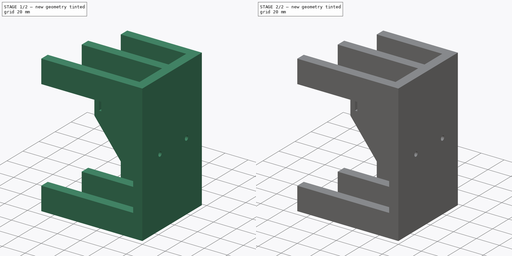
[diagram: build sequence overview — one tinted view per stage of 2, left to right]
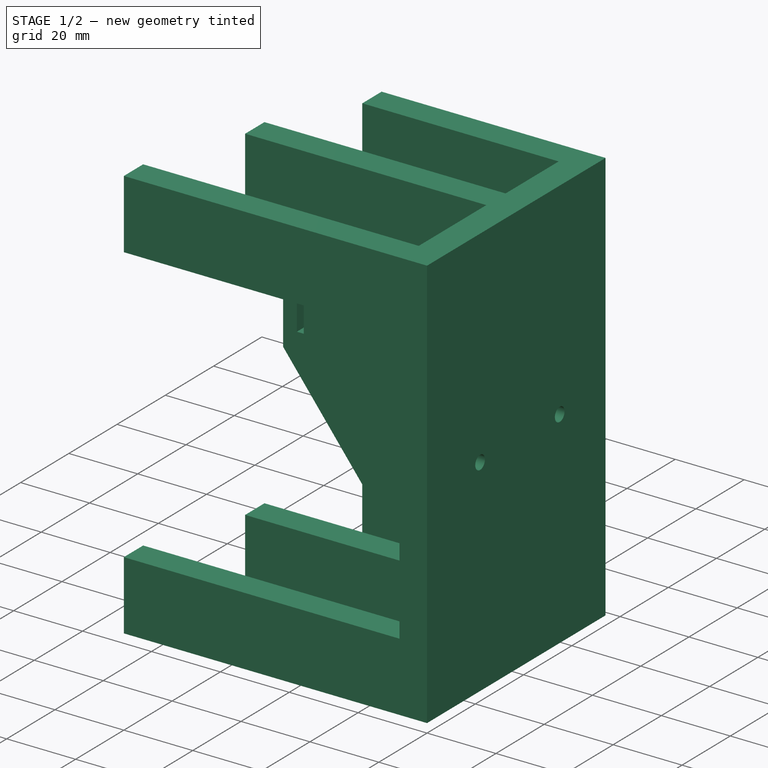
[diagram: stage 1 of 2 — iso view after this stage's code; geometry added in this stage tinted green]
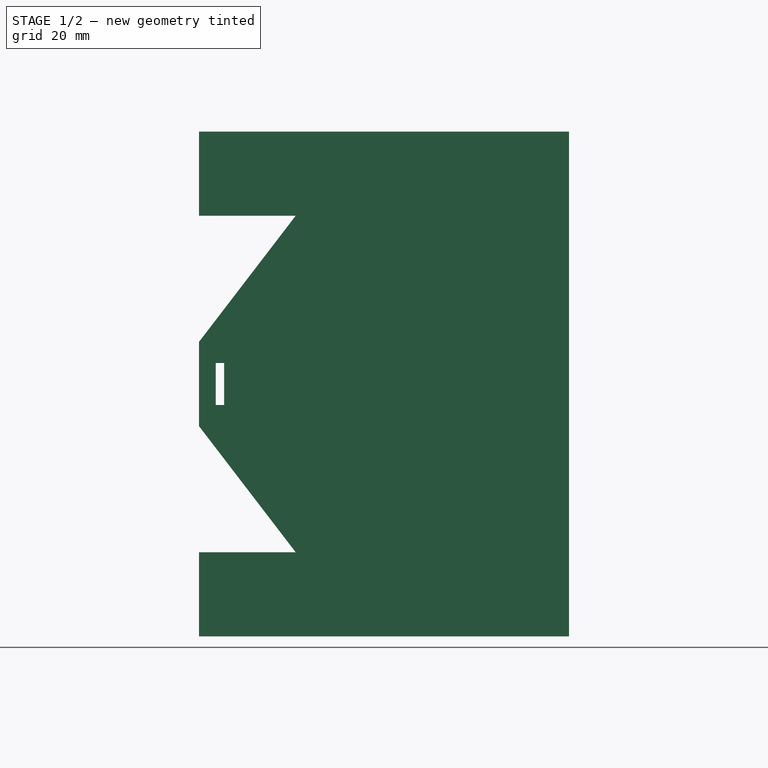
[diagram: stage 1 of 2 — front view after this stage's code; geometry added in this stage tinted green]
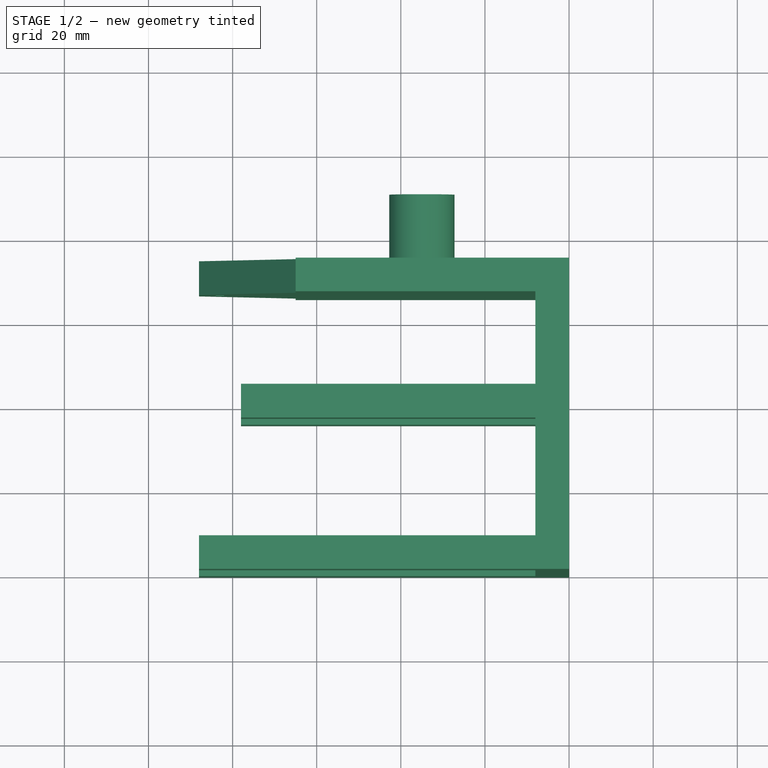
[diagram: stage 1 of 2 — top view after this stage's code; geometry added in this stage tinted green]
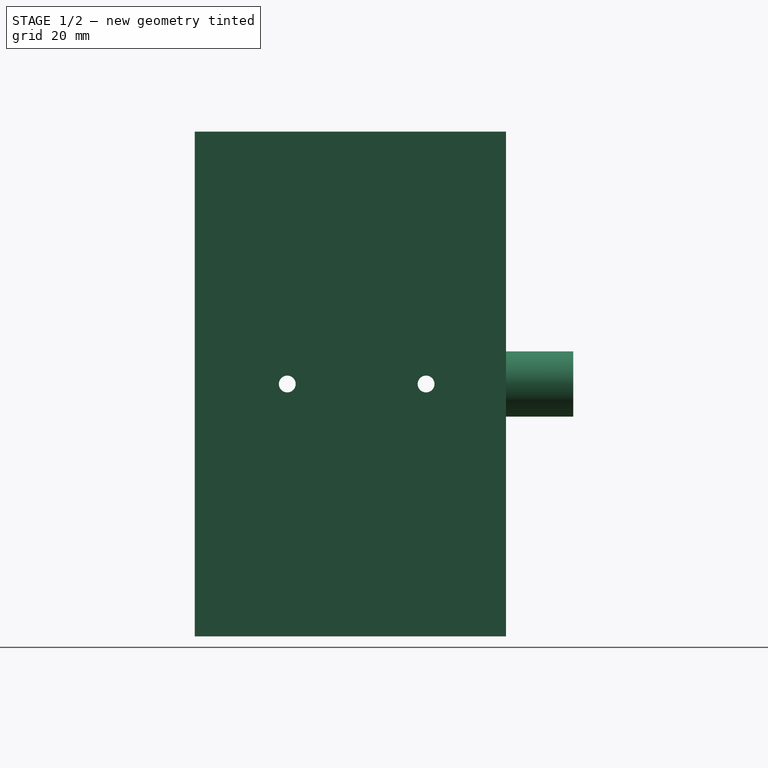
[diagram: stage 1 of 2 — right view after this stage's code; geometry added in this stage tinted green]
FCSTD DOCUMENT  (FreeCAD 0.18R4 (GitTag))
Label: soporte_dremel_accesoros
License: All rights reserved
LicenseURL: http://en.wikipedia.org/wiki/All_rights_reserved
objects: Sketcher::SketchObject×7, Part::Box×3, Part::Extrusion×3, PartDesign::Pad×2, PartDesign::Body×2, Part::MultiFuse×2, Part::Cut×2, PartDesign::Hole×2, Part::Chamfer×1
note: 28 computed .brp shape members not serialized (recipe doc carries the construction recipe); baked Part::Feature solids carry a one-line shape summary decoded from their .brp

FEATURE [Sketcher::SketchObject] Sketch
  MapMode = 5
  Support = -> [XY_Plane]
  sketch-geometry (12):
    g0: LineSegment StartX=-88 StartY=8 StartZ=0 EndX=-8 EndY=8 EndZ=0
    g1: LineSegment StartX=-88 StartY=8 StartZ=0 EndX=-88 EndY=0 EndZ=0
    g2: LineSegment StartX=-88 StartY=0 StartZ=0 EndX=0 EndY=0 EndZ=0
    g3: LineSegment StartX=0 StartY=0 StartZ=0 EndX=0 EndY=74 EndZ=0
    g4: LineSegment StartX=0 StartY=74 StartZ=0 EndX=-65 EndY=74 EndZ=0
    g5: LineSegment StartX=-65 StartY=74 StartZ=0 EndX=-65 EndY=66 EndZ=0
    g6: LineSegment StartX=-65 StartY=66 StartZ=0 EndX=-8 EndY=66 EndZ=0
    g7: LineSegment StartX=-8 StartY=66 StartZ=0 EndX=-8 EndY=44 EndZ=0
    g8: LineSegment StartX=-8 StartY=44 StartZ=0 EndX=-78 EndY=44 EndZ=0
    g9: LineSegment StartX=-78 StartY=44 StartZ=0 EndX=-78 EndY=36 EndZ=0
    g10: LineSegment StartX=-78 StartY=36 StartZ=0 EndX=-8 EndY=36 EndZ=0
    g11: LineSegment StartX=-8 StartY=36 StartZ=0 EndX=-8 EndY=8 EndZ=0
  constraints (35):
    c: Horizontal(g0)
    c: Coincident(g0,g1)
    c: Vertical(g1)
    c: Coincident(g1,g2)
    c: Horizontal(g2)
    c: Coincident(g2,g3)
    c: PointOnObject(g3,g-2)
    c: Coincident(g3,g4)
    c: Horizontal(g4)
    c: Coincident(g4,g5)
    c: Vertical(g5)
    c: Coincident(g5,g6)
    c: Horizontal(g6)
    c: Coincident(g6,g7)
    c: Vertical(g7)
    c: Coincident(g7,g8)
    c: Horizontal(g8)
    c: Coincident(g8,g9)
    c: Vertical(g9)
    c: Coincident(g9,g10)
    c: Horizontal(g10)
    c: Coincident(g10,g11)
    c: Coincident(g11,g0)
    c: Vertical(g11)
    c: DistanceX(g0,g0) = 80
    c: DistanceX(g10,g7) = 0
    c: DistanceY(g2,g0) = 8
    c: DistanceX(g10,g10) = 70
    c: DistanceX(g4,g4) = 65
    c: DistanceY(g10,g7) = 8
    c: DistanceY(g6,g3) = 8
    c: DistanceX(g0,g2) = 8
    c: DistanceY(g11,g11) = 28
    c: DistanceY(g7,g7) = 22
    c: Coincident(g2,g-1)
FEATURE [PartDesign::Pad] Pad
  Length = 20
  Length2 = 100
  Profile = -> Sketch
  Type = 0
FEATURE [Sketcher::SketchObject] Sketch001
  MapMode = 5
  Support = -> [XY_Plane001]
  sketch-geometry (12):
    g0: LineSegment StartX=-88 StartY=8 StartZ=0 EndX=-8 EndY=8 EndZ=0
    g1: LineSegment StartX=-88 StartY=8 StartZ=0 EndX=-88 EndY=0 EndZ=0
    g2: LineSegment StartX=-88 StartY=0 StartZ=0 EndX=0 EndY=0 EndZ=0
    g3: LineSegment StartX=0 StartY=0 StartZ=0 EndX=0 EndY=74 EndZ=0
    g4: LineSegment StartX=0 StartY=74 StartZ=0 EndX=-65 EndY=74 EndZ=0
    g5: LineSegment StartX=-65 StartY=74 StartZ=0 EndX=-65 EndY=66 EndZ=0
    g6: LineSegment StartX=-65 StartY=66 StartZ=0 EndX=-8 EndY=66 EndZ=0
    g7: LineSegment StartX=-8 StartY=66 StartZ=0 EndX=-8 EndY=44 EndZ=0
    g8: LineSegment StartX=-8 StartY=44 StartZ=0 EndX=-78 EndY=44 EndZ=0
    g9: LineSegment StartX=-78 StartY=44 StartZ=0 EndX=-78 EndY=36 EndZ=0
    g10: LineSegment StartX=-78 StartY=36 StartZ=0 EndX=-8 EndY=36 EndZ=0
    g11: LineSegment StartX=-8 StartY=36 StartZ=0 EndX=-8 EndY=8 EndZ=0
  constraints (35):
    c: Horizontal(g0)
    c: Coincident(g0,g1)
    c: Vertical(g1)
    c: Coincident(g1,g2)
    c: Horizontal(g2)
    c: Coincident(g2,g3)
    c: PointOnObject(g3,g-2)
    c: Coincident(g3,g4)
    c: Horizontal(g4)
    c: Coincident(g4,g5)
    c: Vertical(g5)
    c: Coincident(g5,g6)
    c: Horizontal(g6)
    c: Coincident(g6,g7)
    c: Vertical(g7)
    c: Coincident(g7,g8)
    c: Horizontal(g8)
    c: Coincident(g8,g9)
    c: Vertical(g9)
    c: Coincident(g9,g10)
    c: Horizontal(g10)
    c: Coincident(g10,g11)
    c: Coincident(g11,g0)
    c: Vertical(g11)
    c: DistanceX(g0,g0) = 80
    c: DistanceX(g10,g7) = 0
    c: DistanceY(g2,g0) = 8
    c: DistanceX(g10,g10) = 70
    c: DistanceX(g4,g4) = 65
    c: DistanceY(g10,g7) = 8
    c: DistanceY(g6,g3) = 8
    c: DistanceX(g0,g2) = 8
    c: DistanceY(g11,g11) = 28
    c: DistanceY(g7,g7) = 22
    c: Coincident(g2,g-1)
FEATURE [PartDesign::Pad] Pad001
  Length = 20
  Length2 = 100
  Profile = -> Sketch001
  Type = 0
FEATURE [PartDesign::Body] Body001
  Group = -> [Sketch001,Pad001]
  Origin = -> Origin001
  Placement = pos=(0,0,100) rot=(0,0,1;0rad)
  Tip = -> Pad001
FEATURE [Part::Box] Box  label="Cube"
  AttacherType = Attacher::AttachEngine3D
  Height = 120
  Length = 8
  Placement = pos=(-8,0,0) rot=(0,0,1;0rad)
  Width = 74
FEATURE [Part::Box] Box001  label="Cube001"
  AttacherType = Attacher::AttachEngine3D
  Height = 120
  Length = 65
  Placement = pos=(-65,66,0) rot=(0,0,1;0rad)
  Width = 8
FEATURE [Part::Box] Box002  label="Cube002"
  AttacherType = Attacher::AttachEngine3D
  Height = 10
  Length = 2
  Placement = pos=(-84,64,55) rot=(0,0,1;0rad)
  Width = 10
FEATURE [Sketcher::SketchObject] CopySketch005
  Placement = pos=(-8,0,0) rot=(0.57735,-0.57735,-0.57735;2.0944rad)
  sketch-geometry (4):
    g0: LineSegment [constr] StartX=-55 StartY=20 StartZ=0 EndX=-55 EndY=60 EndZ=0
    g1: LineSegment [constr] StartX=-22 StartY=20 StartZ=0 EndX=-22 EndY=60 EndZ=0
    g2: Circle CenterX=-55 CenterY=60 CenterZ=0 NormalX=0 NormalY=0 NormalZ=1 AngleXU=0 Radius=2
    g3: Circle CenterX=-22 CenterY=60 CenterZ=0 NormalX=0 NormalY=0 NormalZ=1 AngleXU=0 Radius=2
  constraints (8):
    c: Vertical(g0)
    c: Vertical(g1)
    c: DistanceY(g1,g1) = 40
    c: DistanceY(g0,g0) = 40
    c: Coincident(g2,g0)
    c: Diameter(g3) = 4
    c: Equal(g3,g2)
    c: Coincident(g3,g1)
FEATURE [PartDesign::Body] Body
  Group = -> [Sketch,Pad,Hole,Hole001]
  Origin = -> Origin
  Tip = -> Hole001
FEATURE [Part::MultiFuse] Fusion
  Shapes = -> [Box001,Box,Body001,Body]
FEATURE [Sketcher::SketchObject] Sketch002
  ExternalGeometry = -> [Fusion]
  MapMode = 5
  Placement = pos=(0,74,0) rot=(0,0.707107,0.707107;3.14159rad)
  Support = -> [Fusion]
  sketch-geometry (2):
    g0: Circle [constr] CenterX=35 CenterY=60 CenterZ=0 NormalX=0 NormalY=0 NormalZ=1 AngleXU=0 Radius=30
    g1: Circle CenterX=35 CenterY=60 CenterZ=0 NormalX=0 NormalY=0 NormalZ=1 AngleXU=0 Radius=7.75
  constraints (5):
    c: Coincident(g1,g0)
    c: Diameter(g1) = 15.5
    c: Diameter(g0) = 60
    c: DistanceX(g1,g-3) = 30
    c: DistanceY(g1,g-3) = 60
FEATURE [Part::Extrusion] Extrude
  Base = -> Sketch002
  Dir = (0,1,-2e-16)
  DirMode = 2
  FaceMakerClass = Part::FaceMakerBullseye
  LengthFwd = 16
  LengthRev = 0
  Solid = true
  Symmetric = false
FEATURE [Sketcher::SketchObject] Sketch003
  ExternalGeometry = -> [Pad001,Sketch001,Fusion]
  MapMode = 5
  Placement = pos=(0,74,0) rot=(0,0.707107,0.707107;3.14159rad)
  Support = -> [Fusion]
  sketch-geometry (5):
    g0: LineSegment StartX=65 StartY=100 StartZ=0 EndX=65 EndY=20 EndZ=0
    g1: LineSegment StartX=65 StartY=20 StartZ=0 EndX=88 EndY=50 EndZ=0
    g2: LineSegment StartX=88 StartY=50 StartZ=0 EndX=88 EndY=70 EndZ=0
    g3: LineSegment StartX=88 StartY=70 StartZ=0 EndX=65 EndY=100 EndZ=0
    g4: LineSegment [constr] StartX=0 StartY=60 StartZ=0 EndX=120 EndY=60 EndZ=0
  constraints (14):
    c: Vertical(g0)
    c: Coincident(g0,g1)
    c: Coincident(g1,g2)
    c: Vertical(g2)
    c: Coincident(g2,g3)
    c: Coincident(g3,g0)
    c: DistanceY(g-1,g4) = 60
    c: Symmetric(g2,g1,g4)
    c: DistanceY(g2,g2) = 20
    c: DistanceX(g0,g2) = 23
    c: DistanceY(g0,g0) = 80
    c: Coincident(g0,g-6)
    c: DistanceX(g4,g4) = 120
    c: PointOnObject(g4,g-2)
FEATURE [Part::Extrusion] Extrude001
  Base = -> Sketch003
  Dir = (0,1,-2e-16)
  DirMode = 2
  FaceMakerClass = Part::FaceMakerBullseye
  LengthFwd = 0
  LengthRev = 8
  Solid = true
  Symmetric = false
FEATURE [Part::Cut] Cut
  Base = -> Extrude001
  Tool = -> Box002
FEATURE [Sketcher::SketchObject] Sketch004
  ExternalGeometry = -> [Sketch,Pad,Sketch001,Pad001,Fusion001]
  MapMode = 5
  Placement = pos=(-8,0,0) rot=(0.57735,-0.57735,-0.57735;2.0944rad)
  Support = -> [Fusion]
  sketch-geometry (9):
    g0: LineSegment [constr] StartX=-66 StartY=20 StartZ=0 EndX=-55 EndY=10 EndZ=0
    g1: LineSegment [constr] StartX=-44 StartY=20 StartZ=0 EndX=-55 EndY=10 EndZ=0
    g2: LineSegment [constr] StartX=-36 StartY=20 StartZ=0 EndX=-22 EndY=10 EndZ=0
    g3: LineSegment [constr] StartX=-8 StartY=20 StartZ=0 EndX=-22 EndY=10 EndZ=0
    g4: LineSegment [constr] StartX=-55 StartY=10 StartZ=0 EndX=-55 EndY=60 EndZ=0
    g5: LineSegment [constr] StartX=-22 StartY=10 StartZ=0 EndX=-22 EndY=60 EndZ=0
    g6: LineSegment [constr] StartX=-100 StartY=60 StartZ=0 EndX=0 EndY=60 EndZ=0
    g7: Circle CenterX=-55 CenterY=60 CenterZ=0 NormalX=0 NormalY=0 NormalZ=1 AngleXU=0 Radius=2
    g8: Circle CenterX=-22 CenterY=60 CenterZ=0 NormalX=0 NormalY=0 NormalZ=1 AngleXU=0 Radius=2
  constraints (24):
    c: Coincident(g1,g-8)
    c: Coincident(g0,g-8)
    c: Coincident(g-5,g2)
    c: Coincident(g3,g-5)
    c: Coincident(g0,g1)
    c: Coincident(g2,g3)
    c: Vertical(g4)
    c: Coincident(g5,g2)
    c: Vertical(g5)
    c: Horizontal(g6)
    c: Coincident(g0,g4)
    c: DistanceY(g-6,g2) = 10
    c: DistanceY(g0,g2) = 0
    c: DistanceX(g0,g2) = 33
    c: DistanceX(g-7,g0) = 11
    c: PointOnObject(g6,g-2)
    c: DistanceY(g-1,g6) = 60
    c: DistanceX(g6,g6) = 100
    c: PointOnObject(g5,g6)
    c: PointOnObject(g4,g6)
    c: Coincident(g7,g4)
    c: Coincident(g8,g5)
    c: Diameter(g7) = 4
    c: Equal(g7,g8)
FEATURE [Part::MultiFuse] Fusion001
  Shapes = -> [Cut,Extrude,Fusion]
FEATURE [PartDesign::Hole] Hole
  BaseFeature = -> Pad
  Depth = 25
  DepthType = 1
  Diameter = 4.4
  DrillPoint = 1
  DrillPointAngle = 118
  HoleCutCountersinkAngle = 90
  HoleCutDepth = 2.4
  HoleCutDiameter = 8
  HoleCutType = 1
  ModelActualThread = false
  Profile = -> Sketch004
  Tapered = false
  TaperedAngle = 90
  ThreadAngle = 0
  ThreadClass = 0
  ThreadCutOffInner = 0
  ThreadCutOffOuter = 0
  ThreadDirection = 0
  ThreadFit = 0
  ThreadPitch = 0
  ThreadSize = 5
  ThreadType = 1
  Threaded = false
FEATURE [Sketcher::SketchObject] Sketch005
  ExternalGeometry = -> [Hole]
  MapMode = 5
  Placement = pos=(-8,0,0) rot=(0.57735,-0.57735,-0.57735;2.0944rad)
  Support = -> [Fusion001]
  sketch-geometry (4):
    g0: LineSegment [constr] StartX=-55 StartY=20 StartZ=0 EndX=-55 EndY=60 EndZ=0
    g1: LineSegment [constr] StartX=-22 StartY=20 StartZ=0 EndX=-22 EndY=60 EndZ=0
    g2: Circle CenterX=-55 CenterY=60 CenterZ=0 NormalX=0 NormalY=0 NormalZ=1 AngleXU=0 Radius=2
    g3: Circle CenterX=-22 CenterY=60 CenterZ=0 NormalX=0 NormalY=0 NormalZ=1 AngleXU=0 Radius=2
  constraints (10):
    c: Vertical(g0)
    c: Vertical(g1)
    c: DistanceY(g1,g1) = 40
    c: DistanceY(g0,g0) = 40
    c: Symmetric(g-3,g-3,g0)
    c: Symmetric(g-4,g-4,g1)
    c: Coincident(g2,g0)
    c: Diameter(g3) = 4
    c: Equal(g3,g2)
    c: Coincident(g3,g1)
FEATURE [PartDesign::Hole] Hole001
  BaseFeature = -> Hole
  Depth = 25
  DepthType = 1
  Diameter = 1.75
  DrillPoint = 1
  DrillPointAngle = 118
  HoleCutCountersinkAngle = 90
  HoleCutDepth = 0.96
  HoleCutDiameter = 3.2
  HoleCutType = 1
  ModelActualThread = false
  Profile = -> CopySketch005
  Tapered = false
  TaperedAngle = 90
  ThreadAngle = 0
  ThreadClass = 0
  ThreadCutOffInner = 0
  ThreadCutOffOuter = 0
  ThreadDirection = 0
  ThreadFit = 0
  ThreadPitch = 0
  ThreadSize = 0
  ThreadType = 1
  Threaded = false
FEATURE [Part::Extrusion] Extrude002
  Base = -> Sketch005
  Dir = (-1,0,0)
  DirMode = 2
  FaceMakerClass = Part::FaceMakerBullseye
  LengthFwd = 20
  LengthRev = 0
  Placement = pos=(16,0,0) rot=(0,0,1;0rad)
  Solid = true
  Symmetric = false
FEATURE [Part::Cut] Cut001
  Base = -> Fusion001
  Tool = -> Extrude002
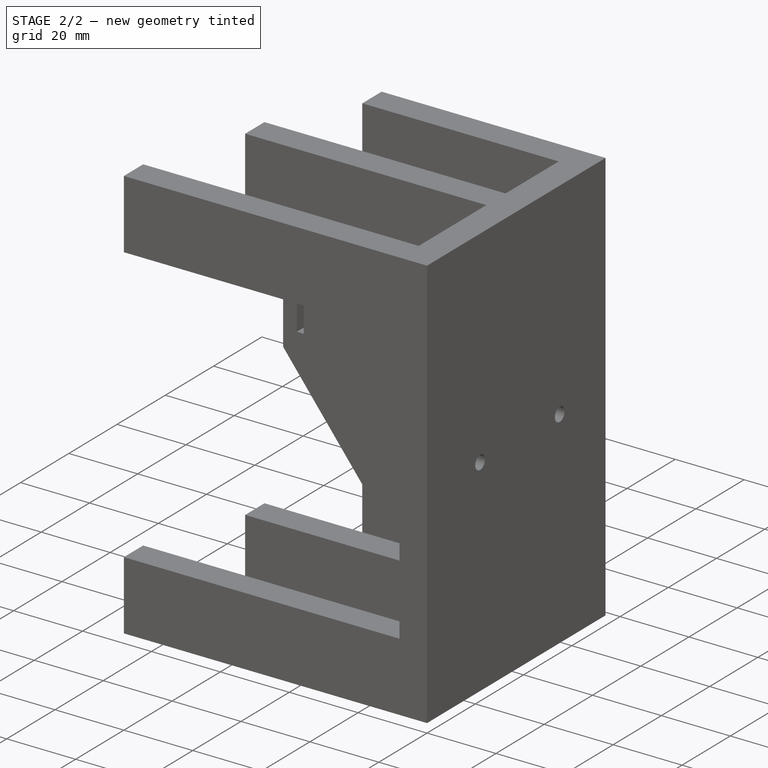
[diagram: stage 2 of 2 — iso view after this stage's code; geometry added in this stage tinted green]
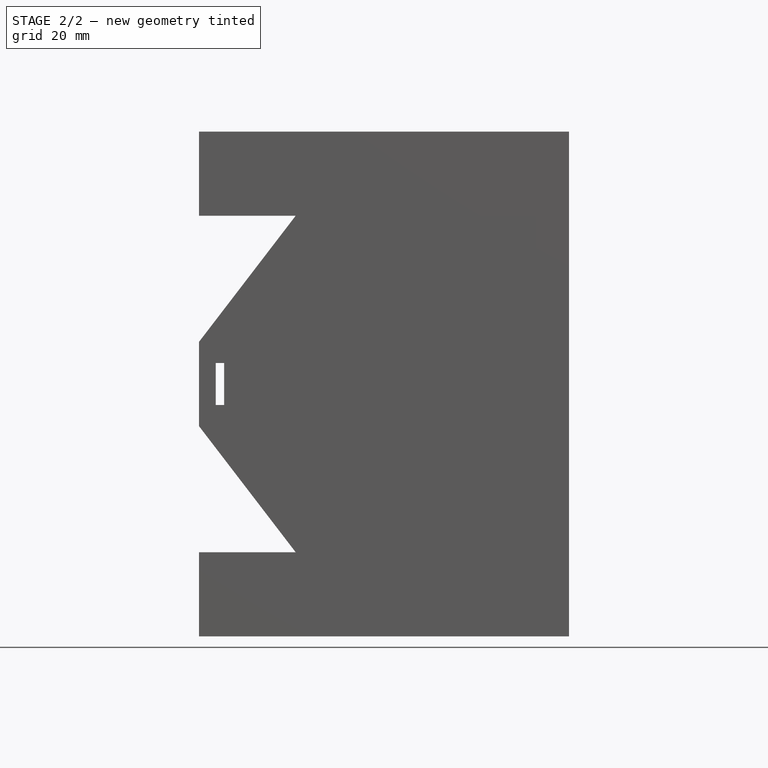
[diagram: stage 2 of 2 — front view after this stage's code; geometry added in this stage tinted green]
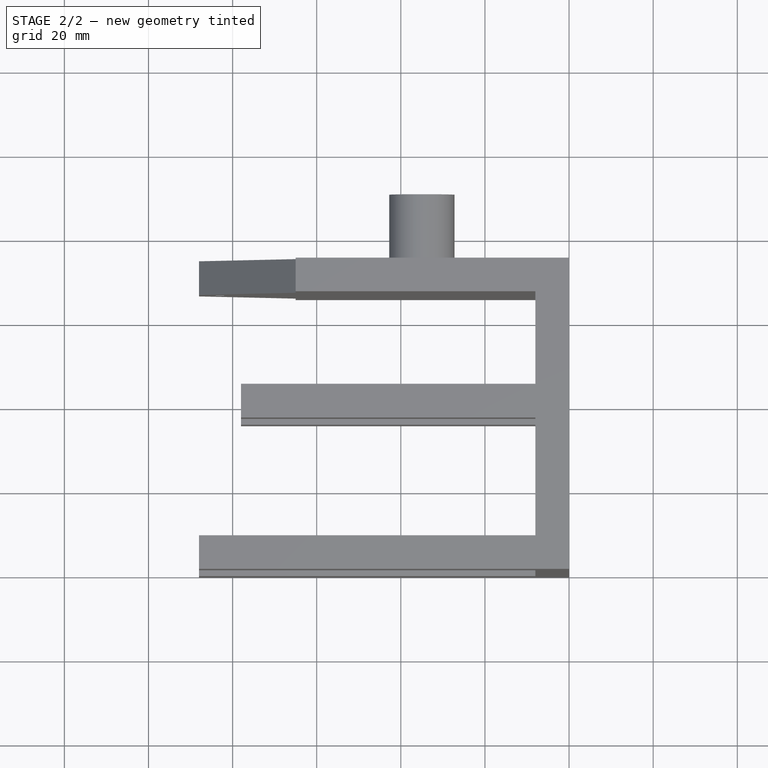
[diagram: stage 2 of 2 — top view after this stage's code; geometry added in this stage tinted green]
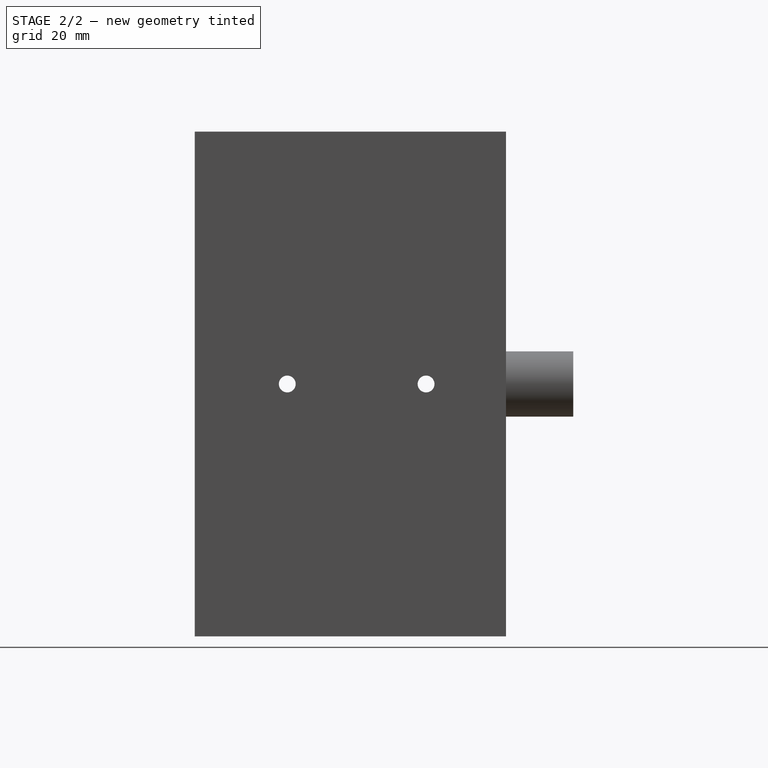
[diagram: stage 2 of 2 — right view after this stage's code; geometry added in this stage tinted green]
FEATURE [Part::Chamfer] Chamfer
  Base = -> Cut001
  Edges = 2 edges r=2.5: [Edge61,Edge62]
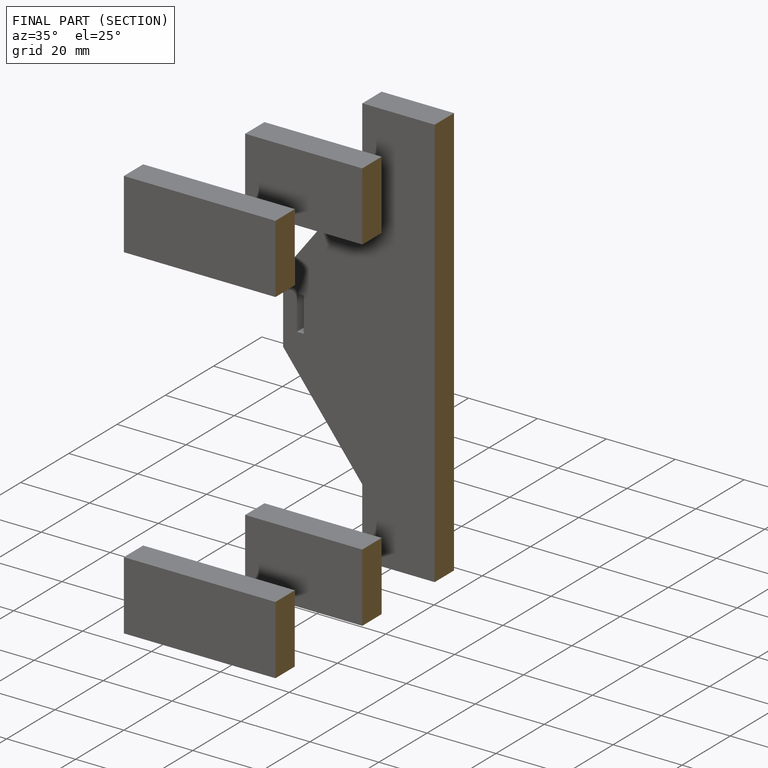
[diagram: finished part — half-section view (interior)]
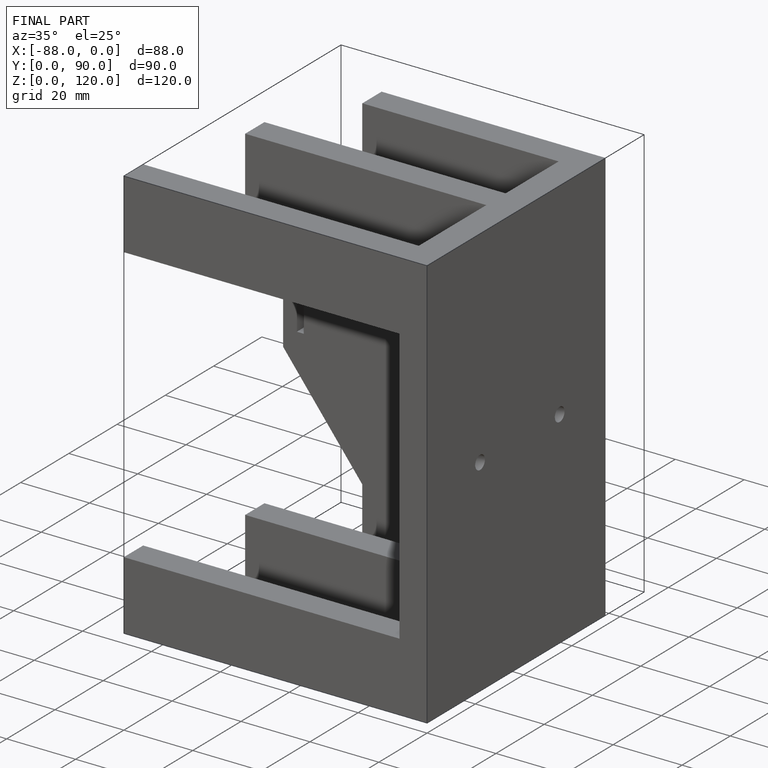
[diagram: finished part — iso view with bounding-box wireframe]
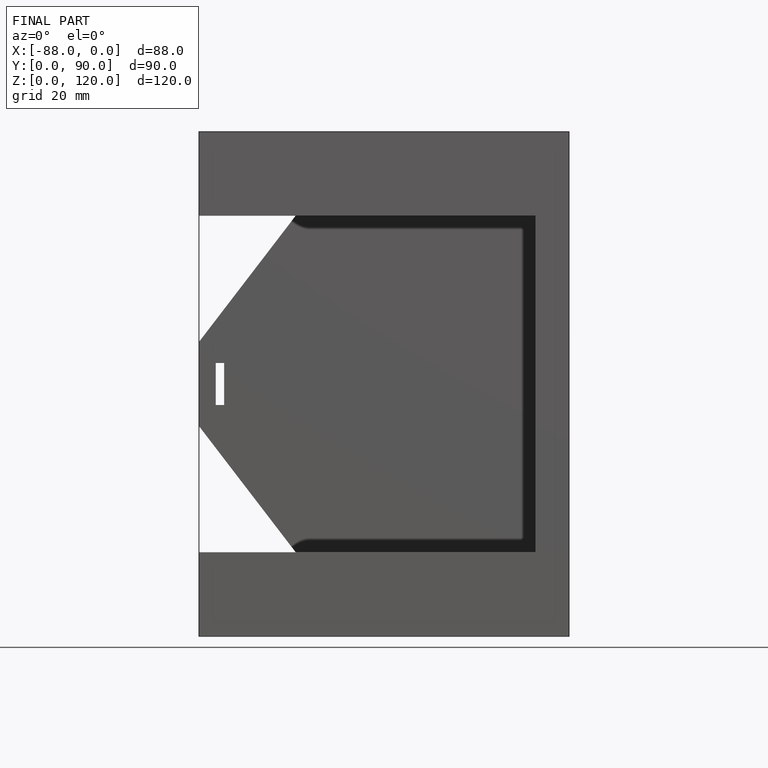
[diagram: finished part — front view with bounding-box wireframe]
